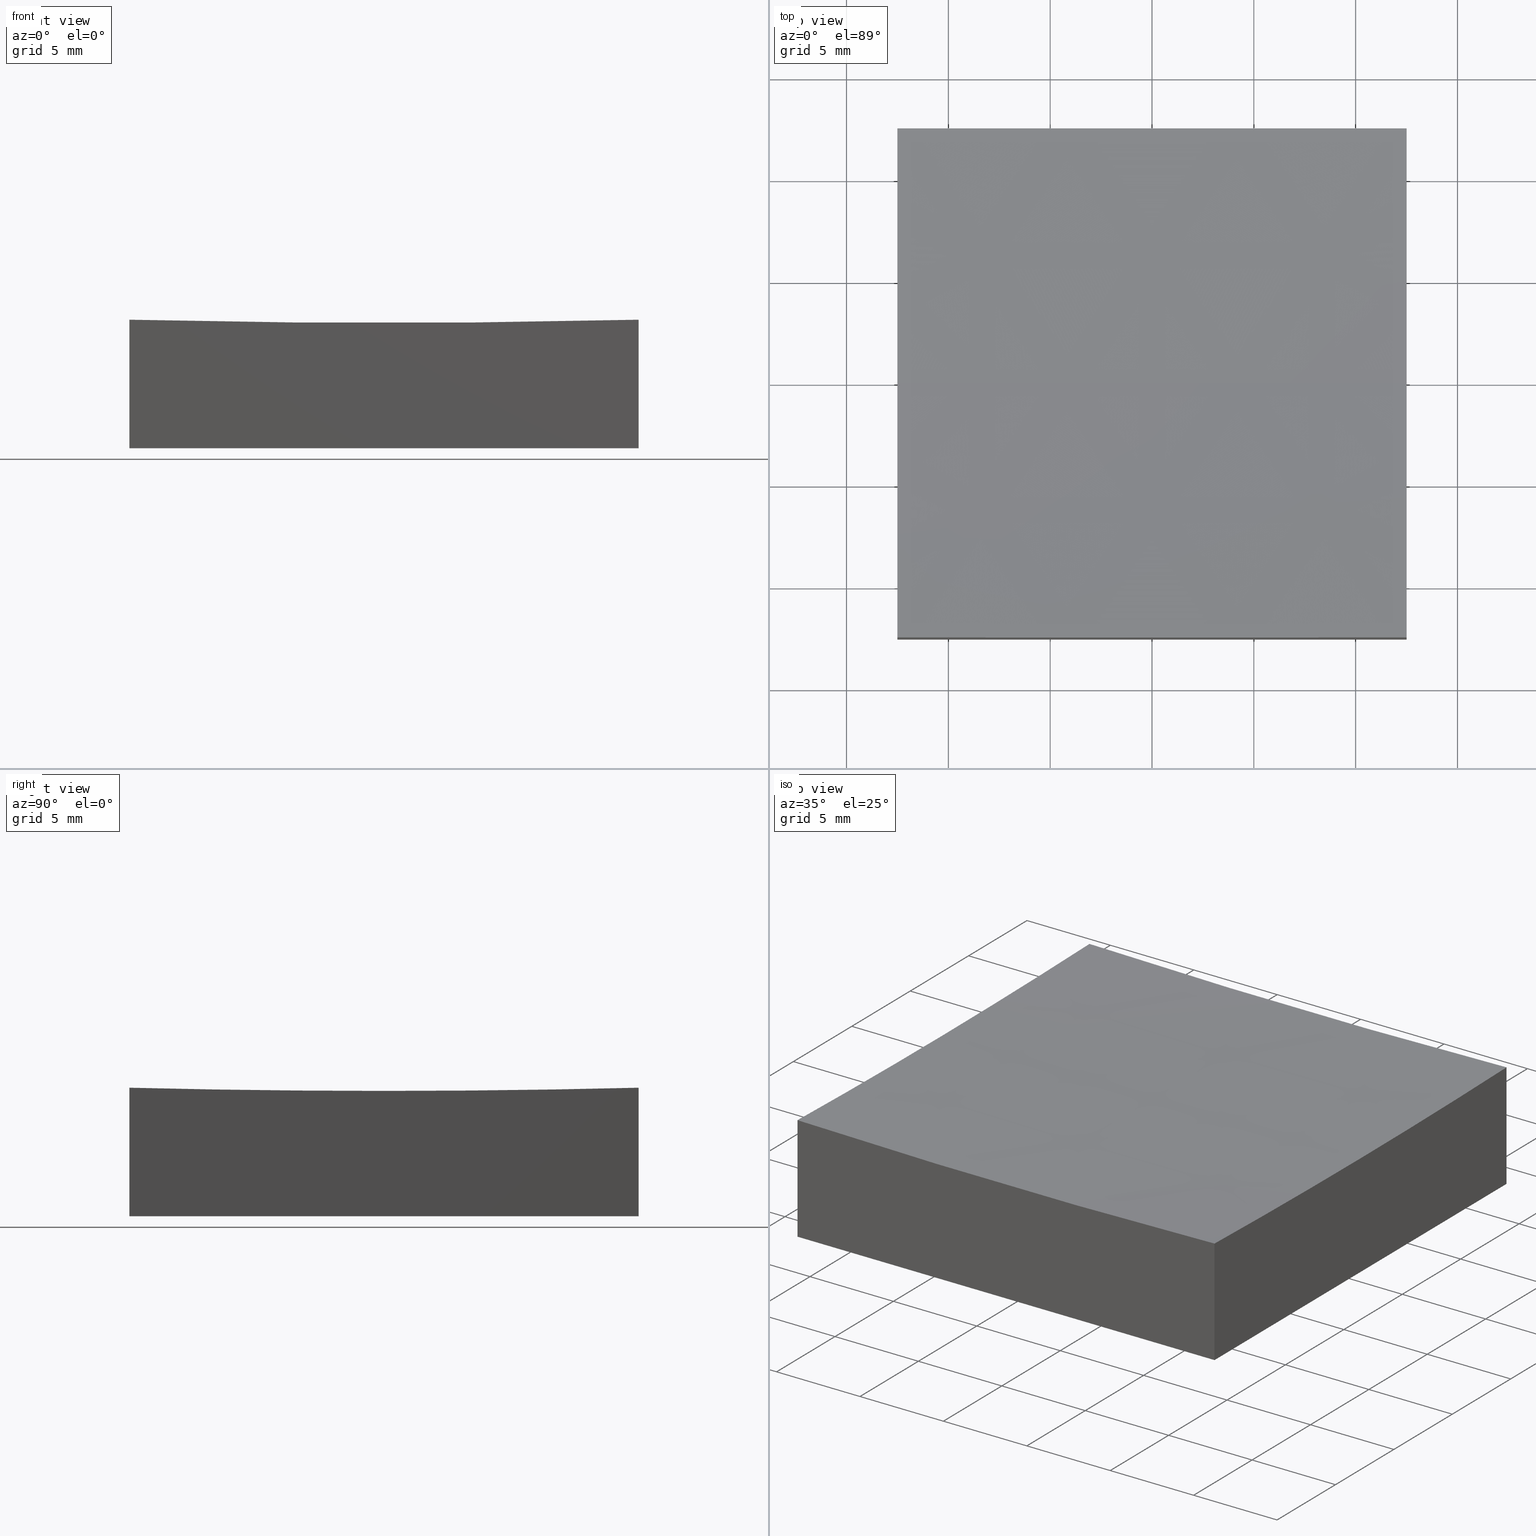
[diagram: canonical four-view strip — front | top / right | iso, engineering-drawing reading convention]
A machine part, canonical four-view strip (front | top / right | iso — engineering-drawing reading convention). The complete STEP part file that produces these views, byte-faithful:
ISO-10303-21;
HEADER;
FILE_DESCRIPTION (( 'STEP AP214' ),
    '1' );
FILE_NAME ('270041.STEP',
    '2020-06-05T06:50:39',
    ( '' ),
    ( '' ),
    'SwSTEP 2.0',
    'SolidWorks 2019',
    '' );
FILE_SCHEMA (( 'AUTOMOTIVE_DESIGN' ));
ENDSEC;

DATA;
#1 = VERTEX_POINT ( 'NONE', #166 ) ;
#2 = AXIS2_PLACEMENT_3D ( 'NONE', #140, #156, #214 ) ;
#3 = ORIENTED_EDGE ( 'NONE', *, *, #14, .T. ) ;
#4 = EDGE_LOOP ( 'NONE', ( #143, #3, #162, #249, #235 ) ) ;
#5 = EDGE_LOOP ( 'NONE', ( #184, #37, #93, #158 ) ) ;
#6 = APPLICATION_CONTEXT ( 'automotive_design' ) ;
#7 = ORIENTED_EDGE ( 'NONE', *, *, #63, .T. ) ;
#8 = PLANE ( 'NONE',  #133 ) ;
#9 = EDGE_CURVE ( 'NONE', #81, #142, #242, .T. ) ;
#10 = CARTESIAN_POINT ( 'NONE',  ( -12.49999999999999645, -12.50000000000000000, 0.0000000000000000000 ) ) ;
#11 = DIRECTION ( 'NONE',  ( -1.388212665044284229E-16, 1.000000000000000000, 0.0000000000000000000 ) ) ;
#12 = MANIFOLD_SOLID_BREP ( '�г�-��ת2', #56 ) ;
#13 = AXIS2_PLACEMENT_3D ( 'NONE', #205, #169, #11 ) ;
#14 = EDGE_CURVE ( 'NONE', #85, #1, #110, .T. ) ;
#15 = DIRECTION ( 'NONE',  ( -1.388212665044284229E-16, 1.000000000000000000, 0.0000000000000000000 ) ) ;
#16 =( GEOMETRIC_REPRESENTATION_CONTEXT ( 3 ) GLOBAL_UNCERTAINTY_ASSIGNED_CONTEXT ( ( #207 ) ) GLOBAL_UNIT_ASSIGNED_CONTEXT ( ( #173, #202, #71 ) ) REPRESENTATION_CONTEXT ( 'NONE', 'WORKASPACE' ) );
#17 = DIRECTION ( 'NONE',  ( 0.0000000000000000000, 0.0000000000000000000, 1.000000000000000000 ) ) ;
#18 = CARTESIAN_POINT ( 'NONE',  ( -12.50000000000000000, 12.50000000000000000, 6.312597717332835145 ) ) ;
#19 = APPLICATION_CONTEXT ( 'automotive_design' ) ;
#20 = ORIENTED_EDGE ( 'NONE', *, *, #160, .F. ) ;
#21 = CIRCLE ( 'NONE', #199, 499.8437255783051683 ) ;
#22 = ORIENTED_EDGE ( 'NONE', *, *, #151, .F. ) ;
#23 = VERTEX_POINT ( 'NONE', #75 ) ;
#24 = CARTESIAN_POINT ( 'NONE',  ( 12.50000000000000355, -12.50000000000000000, 20.00000000000000000 ) ) ;
#25 = DIRECTION ( 'NONE',  ( 0.0000000000000000000, 1.000000000000000000, 0.0000000000000000000 ) ) ;
#26 = VECTOR ( 'NONE', #149, 1000.000000000000000 ) ;
#27 = CARTESIAN_POINT ( 'NONE',  ( 12.50000000000000000, 12.50000000000000000, 0.0000000000000000000 ) ) ;
#28 = PRODUCT_DEFINITION_CONTEXT ( 'detailed design', #19, 'design' ) ;
#29 = PRESENTATION_LAYER_ASSIGNMENT (  '', '', ( #115 ) ) ;
#30 = DIRECTION ( 'NONE',  ( 1.000000000000000000, 1.387778780781445676E-16, -0.0000000000000000000 ) ) ;
#31 = SPHERICAL_SURFACE ( 'NONE', #2, 500.0000000000000000 ) ;
#32 = PRESENTATION_STYLE_ASSIGNMENT (( #94 ) ) ;
#33 = ORIENTED_EDGE ( 'NONE', *, *, #101, .T. ) ;
#34 = PRODUCT_RELATED_PRODUCT_CATEGORY ( 'part', '', ( #191 ) ) ;
#35 = VERTEX_POINT ( 'NONE', #157 ) ;
#36 = AXIS2_PLACEMENT_3D ( 'NONE', #192, #221, #129 ) ;
#37 = ORIENTED_EDGE ( 'NONE', *, *, #237, .T. ) ;
#38 = ORIENTED_EDGE ( 'NONE', *, *, #40, .T. ) ;
#39 = AXIS2_PLACEMENT_3D ( 'NONE', #97, #17, #54 ) ;
#40 = EDGE_CURVE ( 'NONE', #35, #215, #232, .T. ) ;
#41 = PLANE ( 'NONE',  #139 ) ;
#42 = FACE_OUTER_BOUND ( 'NONE', #121, .T. ) ;
#43 = CARTESIAN_POINT ( 'NONE',  ( 12.50000000000000178, 1.734723475976798811E-15, 506.0000000000000000 ) ) ;
#44 = ADVANCED_FACE ( 'NONE', ( #211 ), #31, .F. ) ;
#45 = CARTESIAN_POINT ( 'NONE',  ( 6.196712803685608594E-14, 0.0000000000000000000, 506.0000000000000000 ) ) ;
#46 = DIRECTION ( 'NONE',  ( -0.0000000000000000000, -0.0000000000000000000, -1.000000000000000000 ) ) ;
#47 = DIRECTION ( 'NONE',  ( 0.0000000000000000000, 0.0000000000000000000, -1.000000000000000000 ) ) ;
#48 = ADVANCED_FACE ( 'NONE', ( #78 ), #231, .F. ) ;
#49 = ADVANCED_FACE ( 'NONE', ( #108 ), #41, .T. ) ;
#50 = MECHANICAL_DESIGN_GEOMETRIC_PRESENTATION_REPRESENTATION (  '', ( #201 ), #96 ) ;
#51 = CIRCLE ( 'NONE', #122, 499.8437255783051683 ) ;
#52 = LINE ( 'NONE', #210, #148 ) ;
#53 = ADVANCED_FACE ( 'NONE', ( #42 ), #8, .T. ) ;
#54 = DIRECTION ( 'NONE',  ( 1.000000000000000000, 0.0000000000000000000, 0.0000000000000000000 ) ) ;
#55 =( NAMED_UNIT ( * ) SI_UNIT ( $, .STERADIAN. ) SOLID_ANGLE_UNIT ( ) );
#56 = CLOSED_SHELL ( 'NONE', ( #44, #53, #240, #116, #180, #49, #48 ) ) ;
#57 = AXIS2_PLACEMENT_3D ( 'NONE', #206, #203, #246 ) ;
#58 = CARTESIAN_POINT ( 'NONE',  ( 12.50000000000000000, 12.50000000000000000, 20.00000000000000000 ) ) ;
#59 = ORIENTED_EDGE ( 'NONE', *, *, #188, .F. ) ;
#60 = ORIENTED_EDGE ( 'NONE', *, *, #168, .F. ) ;
#61 = EDGE_LOOP ( 'NONE', ( #217, #79, #7, #33, #124 ) ) ;
#62 =( GEOMETRIC_REPRESENTATION_CONTEXT ( 3 ) GLOBAL_UNCERTAINTY_ASSIGNED_CONTEXT ( ( #204 ) ) GLOBAL_UNIT_ASSIGNED_CONTEXT ( ( #135, #72, #228 ) ) REPRESENTATION_CONTEXT ( 'NONE', 'WORKASPACE' ) );
#63 = EDGE_CURVE ( 'NONE', #1, #99, #51, .T. ) ;
#64 = DIRECTION ( 'NONE',  ( 0.0000000000000000000, 0.0000000000000000000, -1.000000000000000000 ) ) ;
#65 = SURFACE_STYLE_USAGE ( .BOTH. , #186 ) ;
#66 = CARTESIAN_POINT ( 'NONE',  ( -12.49999999999999822, -1.734723475976815575E-15, 506.0000000000000000 ) ) ;
#67 = LINE ( 'NONE', #87, #100 ) ;
#68 = AXIS2_PLACEMENT_3D ( 'NONE', #152, #245, #90 ) ;
#69 = DIRECTION ( 'NONE',  ( -1.387778780781445676E-16, 1.000000000000000000, 0.0000000000000000000 ) ) ;
#70 = LINE ( 'NONE', #10, #244 ) ;
#71 =( NAMED_UNIT ( * ) SI_UNIT ( $, .STERADIAN. ) SOLID_ANGLE_UNIT ( ) );
#72 =( NAMED_UNIT ( * ) PLANE_ANGLE_UNIT ( ) SI_UNIT ( $, .RADIAN. ) );
#73 = PRODUCT_CONTEXT ( 'NONE', #6, 'mechanical' ) ;
#74 = FACE_OUTER_BOUND ( 'NONE', #5, .T. ) ;
#75 = CARTESIAN_POINT ( 'NONE',  ( 12.50000000000000355, -12.50000000000000000, 0.0000000000000000000 ) ) ;
#76 = APPLICATION_PROTOCOL_DEFINITION ( 'draft international standard', 'automotive_design', 1998, #19 ) ;
#77 = EDGE_CURVE ( 'NONE', #161, #23, #200, .T. ) ;
#78 = FACE_OUTER_BOUND ( 'NONE', #198, .T. ) ;
#79 = ORIENTED_EDGE ( 'NONE', *, *, #112, .T. ) ;
#80 = AXIS2_PLACEMENT_3D ( 'NONE', #45, #88, #47 ) ;
#81 = VERTEX_POINT ( 'NONE', #145 ) ;
#82 = ORIENTED_EDGE ( 'NONE', *, *, #14, .F. ) ;
#83 = CARTESIAN_POINT ( 'NONE',  ( -12.49999999999999645, -12.50000000000000000, 20.00000000000000000 ) ) ;
#84 = DIRECTION ( 'NONE',  ( 1.000000000000000000, 1.387778780781445676E-16, -0.0000000000000000000 ) ) ;
#85 = VERTEX_POINT ( 'NONE', #104 ) ;
#86 = DIRECTION ( 'NONE',  ( 0.0000000000000000000, -0.0000000000000000000, 1.000000000000000000 ) ) ;
#87 = CARTESIAN_POINT ( 'NONE',  ( -12.49999999999999645, -12.50000000000000000, 20.00000000000000000 ) ) ;
#88 = DIRECTION ( 'NONE',  ( 0.0000000000000000000, -1.000000000000000000, -0.0000000000000000000 ) ) ;
#89 = CIRCLE ( 'NONE', #13, 499.8437255783051683 ) ;
#90 = DIRECTION ( 'NONE',  ( 0.0000000000000000000, 0.0000000000000000000, 1.000000000000000000 ) ) ;
#91 = DIRECTION ( 'NONE',  ( 0.0000000000000000000, 1.000000000000000000, 0.0000000000000000000 ) ) ;
#92 = EDGE_CURVE ( 'NONE', #81, #215, #52, .T. ) ;
#93 = ORIENTED_EDGE ( 'NONE', *, *, #137, .T. ) ;
#94 = SURFACE_STYLE_USAGE ( .BOTH. , #153 ) ;
#95 = LINE ( 'NONE', #251, #107 ) ;
#96 =( GEOMETRIC_REPRESENTATION_CONTEXT ( 3 ) GLOBAL_UNCERTAINTY_ASSIGNED_CONTEXT ( ( #226 ) ) GLOBAL_UNIT_ASSIGNED_CONTEXT ( ( #125, #196, #55 ) ) REPRESENTATION_CONTEXT ( 'NONE', 'WORKASPACE' ) );
#97 = CARTESIAN_POINT ( 'NONE',  ( 0.0000000000000000000, 0.0000000000000000000, 0.0000000000000000000 ) ) ;
#98 = CARTESIAN_POINT ( 'NONE',  ( 6.196712803685608594E-14, 0.0000000000000000000, 506.0000000000000000 ) ) ;
#99 = VERTEX_POINT ( 'NONE', #18 ) ;
#100 = VECTOR ( 'NONE', #46, 1000.000000000000000 ) ;
#101 = EDGE_CURVE ( 'NONE', #99, #81, #95, .T. ) ;
#102 = ORIENTED_EDGE ( 'NONE', *, *, #77, .T. ) ;
#103 = ORIENTED_EDGE ( 'NONE', *, *, #177, .T. ) ;
#104 = CARTESIAN_POINT ( 'NONE',  ( 3.271569539582041015E-14, 0.0000000000000000000, 6.000000000000005329 ) ) ;
#105 = SURFACE_STYLE_FILL_AREA ( #164 ) ;
#106 = VECTOR ( 'NONE', #219, 1000.000000000000000 ) ;
#107 = VECTOR ( 'NONE', #155, 1000.000000000000000 ) ;
#108 = FACE_OUTER_BOUND ( 'NONE', #132, .T. ) ;
#109 = FACE_OUTER_BOUND ( 'NONE', #209, .T. ) ;
#110 = CIRCLE ( 'NONE', #233, 500.0000000000000000 ) ;
#111 = LINE ( 'NONE', #27, #26 ) ;
#112 = EDGE_CURVE ( 'NONE', #141, #1, #176, .T. ) ;
#113 = CARTESIAN_POINT ( 'NONE',  ( -12.49999999999999645, -12.50000000000000000, 6.312597717332835145 ) ) ;
#114 = VERTEX_POINT ( 'NONE', #134 ) ;
#115 = STYLED_ITEM ( 'NONE', ( #32 ), #128 ) ;
#116 = ADVANCED_FACE ( 'NONE', ( #74 ), #195, .F. ) ;
#117 = ORIENTED_EDGE ( 'NONE', *, *, #40, .F. ) ;
#118 = DIRECTION ( 'NONE',  ( 1.000000000000000000, 0.0000000000000000000, 0.0000000000000000000 ) ) ;
#119 = DIRECTION ( 'NONE',  ( 1.224646799147353207E-16, 1.000000000000000000, -1.466333358417303786E-32 ) ) ;
#120 = ORIENTED_EDGE ( 'NONE', *, *, #92, .F. ) ;
#121 = EDGE_LOOP ( 'NONE', ( #216, #38, #120, #234 ) ) ;
#122 = AXIS2_PLACEMENT_3D ( 'NONE', #66, #84, #147 ) ;
#123 = DIRECTION ( 'NONE',  ( 0.0000000000000000000, 1.000000000000000000, 0.0000000000000000000 ) ) ;
#124 = ORIENTED_EDGE ( 'NONE', *, *, #9, .T. ) ;
#125 =( LENGTH_UNIT ( ) NAMED_UNIT ( * ) SI_UNIT ( .MILLI., .METRE. ) );
#126 = VECTOR ( 'NONE', #138, 1000.000000000000000 ) ;
#127 = DIRECTION ( 'NONE',  ( 1.000000000000000000, 0.0000000000000000000, -2.220446049250313081E-16 ) ) ;
#128 = ADVANCED_BREP_SHAPE_REPRESENTATION ( '270041', ( #12, #39 ), #16 ) ;
#129 = DIRECTION ( 'NONE',  ( 0.0000000000000000000, 0.0000000000000000000, 1.000000000000000000 ) ) ;
#130 = DIRECTION ( 'NONE',  ( 1.000000000000000000, 1.387778780781445676E-16, -0.0000000000000000000 ) ) ;
#131 = DIRECTION ( 'NONE',  ( 0.0000000000000000000, -0.0000000000000000000, 1.000000000000000000 ) ) ;
#132 = EDGE_LOOP ( 'NONE', ( #197, #236, #22, #178 ) ) ;
#133 = AXIS2_PLACEMENT_3D ( 'NONE', #187, #123, #86 ) ;
#134 = CARTESIAN_POINT ( 'NONE',  ( 12.50000000000000178, 9.629649721936179265E-32, 6.156274421694862831 ) ) ;
#135 =( LENGTH_UNIT ( ) NAMED_UNIT ( * ) SI_UNIT ( .MILLI., .METRE. ) );
#136 = SHAPE_DEFINITION_REPRESENTATION ( #170, #128 ) ;
#137 = EDGE_CURVE ( 'NONE', #141, #142, #67, .T. ) ;
#138 = DIRECTION ( 'NONE',  ( -0.0000000000000000000, -0.0000000000000000000, -1.000000000000000000 ) ) ;
#139 = AXIS2_PLACEMENT_3D ( 'NONE', #220, #64, #241 ) ;
#140 = CARTESIAN_POINT ( 'NONE',  ( 6.196712803685608594E-14, 0.0000000000000000000, 506.0000000000000000 ) ) ;
#141 = VERTEX_POINT ( 'NONE', #113 ) ;
#142 = VERTEX_POINT ( 'NONE', #190 ) ;
#143 = ORIENTED_EDGE ( 'NONE', *, *, #218, .F. ) ;
#144 = PRESENTATION_LAYER_ASSIGNMENT (  '', '', ( #201 ) ) ;
#145 = CARTESIAN_POINT ( 'NONE',  ( -12.50000000000000000, 12.50000000000000000, 0.0000000000000000000 ) ) ;
#146 = PRESENTATION_STYLE_ASSIGNMENT (( #65 ) ) ;
#147 = DIRECTION ( 'NONE',  ( -1.388212665044284229E-16, 1.000000000000000000, 0.0000000000000000000 ) ) ;
#148 = VECTOR ( 'NONE', #118, 1000.000000000000000 ) ;
#149 = DIRECTION ( 'NONE',  ( 1.387778780781445676E-16, -1.000000000000000000, 0.0000000000000000000 ) ) ;
#150 = CARTESIAN_POINT ( 'NONE',  ( 12.50000000000000000, 12.50000000000000000, 0.0000000000000000000 ) ) ;
#151 = EDGE_CURVE ( 'NONE', #142, #23, #70, .T. ) ;
#152 = CARTESIAN_POINT ( 'NONE',  ( 6.196712803685608594E-14, 12.50000000000000000, 506.0000000000000000 ) ) ;
#153 = SURFACE_SIDE_STYLE ('',( #252 ) ) ;
#154 = CIRCLE ( 'NONE', #36, 499.8437255783050546 ) ;
#155 = DIRECTION ( 'NONE',  ( -0.0000000000000000000, -0.0000000000000000000, -1.000000000000000000 ) ) ;
#156 = DIRECTION ( 'NONE',  ( 0.0000000000000000000, 1.000000000000000000, 0.0000000000000000000 ) ) ;
#157 = CARTESIAN_POINT ( 'NONE',  ( 12.50000000000000000, 12.50000000000000000, 6.312597717332835145 ) ) ;
#158 = ORIENTED_EDGE ( 'NONE', *, *, #151, .T. ) ;
#159 = AXIS2_PLACEMENT_3D ( 'NONE', #83, #91, #131 ) ;
#160 = EDGE_CURVE ( 'NONE', #161, #114, #21, .T. ) ;
#161 = VERTEX_POINT ( 'NONE', #225 ) ;
#162 = ORIENTED_EDGE ( 'NONE', *, *, #112, .F. ) ;
#163 = ORIENTED_EDGE ( 'NONE', *, *, #63, .F. ) ;
#164 = FILL_AREA_STYLE ('',( #185 ) ) ;
#165 = PRODUCT_DEFINITION_FORMATION_WITH_SPECIFIED_SOURCE ( '�κ�', '', #191, .NOT_KNOWN. ) ;
#166 = CARTESIAN_POINT ( 'NONE',  ( -12.49999999999999822, 1.530808498934191127E-15, 6.156274421694862831 ) ) ;
#167 = CARTESIAN_POINT ( 'NONE',  ( 6.196712803685608594E-14, 0.0000000000000000000, 506.0000000000000000 ) ) ;
#168 = EDGE_CURVE ( 'NONE', #114, #35, #89, .T. ) ;
#169 = DIRECTION ( 'NONE',  ( 1.000000000000000000, 1.387778780781445676E-16, -0.0000000000000000000 ) ) ;
#170 = PRODUCT_DEFINITION_SHAPE ( 'NONE', 'NONE',  #248 ) ;
#171 = COLOUR_RGB ( '',1.000000000000000000, 1.000000000000000000, 1.000000000000000000 ) ;
#172 = CIRCLE ( 'NONE', #80, 500.0000000000000000 ) ;
#173 =( LENGTH_UNIT ( ) NAMED_UNIT ( * ) SI_UNIT ( .MILLI., .METRE. ) );
#174 = PLANE ( 'NONE',  #57 ) ;
#175 = DIRECTION ( 'NONE',  ( 1.000000000000000000, 0.0000000000000000000, 0.0000000000000000000 ) ) ;
#176 = CIRCLE ( 'NONE', #229, 499.8437255783051683 ) ;
#177 = EDGE_CURVE ( 'NONE', #35, #99, #193, .T. ) ;
#178 = ORIENTED_EDGE ( 'NONE', *, *, #9, .F. ) ;
#179 = FILL_AREA_STYLE ('',( #212 ) ) ;
#180 = ADVANCED_FACE ( 'NONE', ( #109 ), #243, .T. ) ;
#181 = CARTESIAN_POINT ( 'NONE',  ( -12.49999999999999822, -1.734723475976815575E-15, 506.0000000000000000 ) ) ;
#182 = ORIENTED_EDGE ( 'NONE', *, *, #218, .T. ) ;
#183 = VECTOR ( 'NONE', #238, 1000.000000000000000 ) ;
#184 = ORIENTED_EDGE ( 'NONE', *, *, #77, .F. ) ;
#185 = FILL_AREA_STYLE_COLOUR ( '', #171 ) ;
#186 = SURFACE_SIDE_STYLE ('',( #105 ) ) ;
#187 = CARTESIAN_POINT ( 'NONE',  ( -12.50000000000000000, 12.50000000000000000, 20.00000000000000000 ) ) ;
#188 = EDGE_CURVE ( 'NONE', #215, #23, #111, .T. ) ;
#189 = DIRECTION ( 'NONE',  ( 1.000000000000000000, 1.387778780781445676E-16, -0.0000000000000000000 ) ) ;
#190 = CARTESIAN_POINT ( 'NONE',  ( -12.49999999999999645, -12.50000000000000000, 0.0000000000000000000 ) ) ;
#191 = PRODUCT ( '270041', '270041', '', ( #73 ) ) ;
#192 = CARTESIAN_POINT ( 'NONE',  ( 6.196712803685608594E-14, -12.50000000000000000, 506.0000000000000000 ) ) ;
#193 = CIRCLE ( 'NONE', #68, 499.8437255783050546 ) ;
#194 = DIRECTION ( 'NONE',  ( -1.388212665044284229E-16, 1.000000000000000000, 0.0000000000000000000 ) ) ;
#195 = PLANE ( 'NONE',  #159 ) ;
#196 =( NAMED_UNIT ( * ) PLANE_ANGLE_UNIT ( ) SI_UNIT ( $, .RADIAN. ) );
#197 = ORIENTED_EDGE ( 'NONE', *, *, #92, .T. ) ;
#198 = EDGE_LOOP ( 'NONE', ( #82, #182, #230, #103, #163 ) ) ;
#199 = AXIS2_PLACEMENT_3D ( 'NONE', #43, #189, #15 ) ;
#200 = LINE ( 'NONE', #24, #183 ) ;
#201 = STYLED_ITEM ( 'NONE', ( #146 ), #12 ) ;
#202 =( NAMED_UNIT ( * ) PLANE_ANGLE_UNIT ( ) SI_UNIT ( $, .RADIAN. ) );
#203 = DIRECTION ( 'NONE',  ( 1.000000000000000000, 1.387778780781445676E-16, -0.0000000000000000000 ) ) ;
#204 = UNCERTAINTY_MEASURE_WITH_UNIT (LENGTH_MEASURE( 1.000000000000000082E-05 ), #135, 'distance_accuracy_value', 'NONE');
#205 = CARTESIAN_POINT ( 'NONE',  ( 12.50000000000000178, 1.734723475976798811E-15, 506.0000000000000000 ) ) ;
#206 = CARTESIAN_POINT ( 'NONE',  ( -12.50000000000000000, 12.50000000000000000, 20.00000000000000000 ) ) ;
#207 = UNCERTAINTY_MEASURE_WITH_UNIT (LENGTH_MEASURE( 1.000000000000000082E-05 ), #173, 'distance_accuracy_value', 'NONE');
#208 = AXIS2_PLACEMENT_3D ( 'NONE', #224, #130, #69 ) ;
#209 = EDGE_LOOP ( 'NONE', ( #20, #102, #59, #117, #60 ) ) ;
#210 = CARTESIAN_POINT ( 'NONE',  ( -12.50000000000000000, 12.50000000000000000, 0.0000000000000000000 ) ) ;
#211 = FACE_OUTER_BOUND ( 'NONE', #4, .T. ) ;
#212 = FILL_AREA_STYLE_COLOUR ( '', #222 ) ;
#213 = DIRECTION ( 'NONE',  ( -1.000000000000000000, 1.224646799147353207E-16, 0.0000000000000000000 ) ) ;
#214 = DIRECTION ( 'NONE',  ( 1.000000000000000000, 0.0000000000000000000, -2.220446049250313081E-16 ) ) ;
#215 = VERTEX_POINT ( 'NONE', #150 ) ;
#216 = ORIENTED_EDGE ( 'NONE', *, *, #177, .F. ) ;
#217 = ORIENTED_EDGE ( 'NONE', *, *, #137, .F. ) ;
#218 = EDGE_CURVE ( 'NONE', #85, #114, #172, .T. ) ;
#219 = DIRECTION ( 'NONE',  ( 1.387778780781445676E-16, -1.000000000000000000, 0.0000000000000000000 ) ) ;
#220 = CARTESIAN_POINT ( 'NONE',  ( 0.0000000000000000000, 0.0000000000000000000, 0.0000000000000000000 ) ) ;
#221 = DIRECTION ( 'NONE',  ( 0.0000000000000000000, 1.000000000000000000, 0.0000000000000000000 ) ) ;
#222 = COLOUR_RGB ( '',1.000000000000000000, 1.000000000000000000, 1.000000000000000000 ) ;
#223 = FACE_OUTER_BOUND ( 'NONE', #61, .T. ) ;
#224 = CARTESIAN_POINT ( 'NONE',  ( 12.50000000000000000, 12.50000000000000000, 20.00000000000000000 ) ) ;
#225 = CARTESIAN_POINT ( 'NONE',  ( 12.50000000000000355, -12.50000000000000000, 6.312597717332835145 ) ) ;
#226 = UNCERTAINTY_MEASURE_WITH_UNIT (LENGTH_MEASURE( 1.000000000000000082E-05 ), #125, 'distance_accuracy_value', 'NONE');
#227 = MECHANICAL_DESIGN_GEOMETRIC_PRESENTATION_REPRESENTATION (  '', ( #115 ), #62 ) ;
#228 =( NAMED_UNIT ( * ) SI_UNIT ( $, .STERADIAN. ) SOLID_ANGLE_UNIT ( ) );
#229 = AXIS2_PLACEMENT_3D ( 'NONE', #181, #30, #194 ) ;
#230 = ORIENTED_EDGE ( 'NONE', *, *, #168, .T. ) ;
#231 = SPHERICAL_SURFACE ( 'NONE', #247, 500.0000000000000000 ) ;
#232 = LINE ( 'NONE', #58, #126 ) ;
#233 = AXIS2_PLACEMENT_3D ( 'NONE', #98, #119, #213 ) ;
#234 = ORIENTED_EDGE ( 'NONE', *, *, #101, .F. ) ;
#235 = ORIENTED_EDGE ( 'NONE', *, *, #160, .T. ) ;
#236 = ORIENTED_EDGE ( 'NONE', *, *, #188, .T. ) ;
#237 = EDGE_CURVE ( 'NONE', #161, #141, #154, .T. ) ;
#238 = DIRECTION ( 'NONE',  ( -0.0000000000000000000, -0.0000000000000000000, -1.000000000000000000 ) ) ;
#239 = CARTESIAN_POINT ( 'NONE',  ( -12.50000000000000000, 12.50000000000000000, 0.0000000000000000000 ) ) ;
#240 = ADVANCED_FACE ( 'NONE', ( #223 ), #174, .F. ) ;
#241 = DIRECTION ( 'NONE',  ( -1.000000000000000000, 0.0000000000000000000, -0.0000000000000000000 ) ) ;
#242 = LINE ( 'NONE', #239, #106 ) ;
#243 = PLANE ( 'NONE',  #208 ) ;
#244 = VECTOR ( 'NONE', #175, 1000.000000000000000 ) ;
#245 = DIRECTION ( 'NONE',  ( 0.0000000000000000000, 1.000000000000000000, 0.0000000000000000000 ) ) ;
#246 = DIRECTION ( 'NONE',  ( -1.387778780781445676E-16, 1.000000000000000000, 0.0000000000000000000 ) ) ;
#247 = AXIS2_PLACEMENT_3D ( 'NONE', #167, #25, #127 ) ;
#248 = PRODUCT_DEFINITION ( 'δ֪', '', #165, #28 ) ;
#249 = ORIENTED_EDGE ( 'NONE', *, *, #237, .F. ) ;
#250 = APPLICATION_PROTOCOL_DEFINITION ( 'draft international standard', 'automotive_design', 1998, #6 ) ;
#251 = CARTESIAN_POINT ( 'NONE',  ( -12.50000000000000000, 12.50000000000000000, 20.00000000000000000 ) ) ;
#252 = SURFACE_STYLE_FILL_AREA ( #179 ) ;
ENDSEC;
END-ISO-10303-21;
